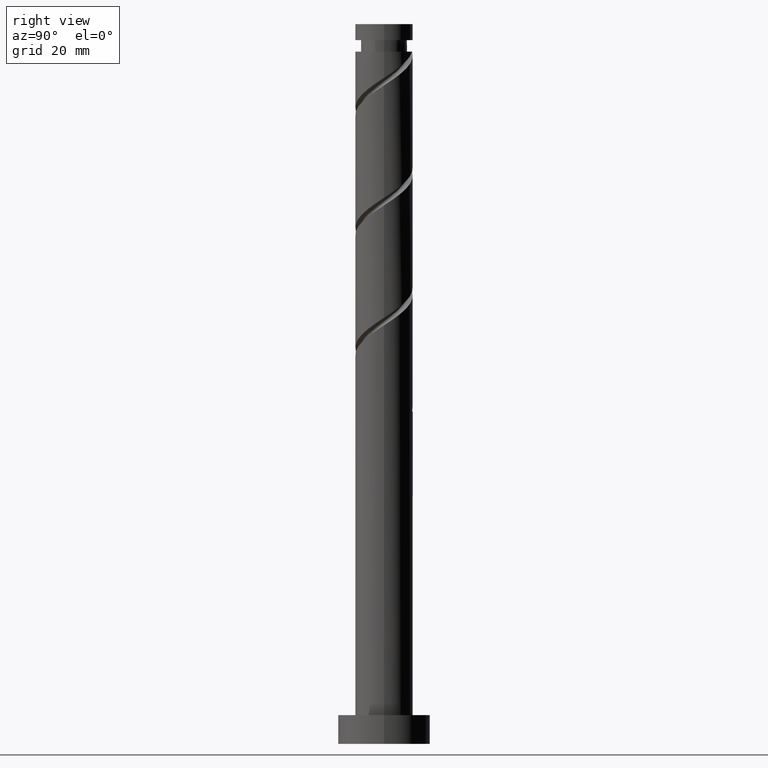
[diagram: clean part render]
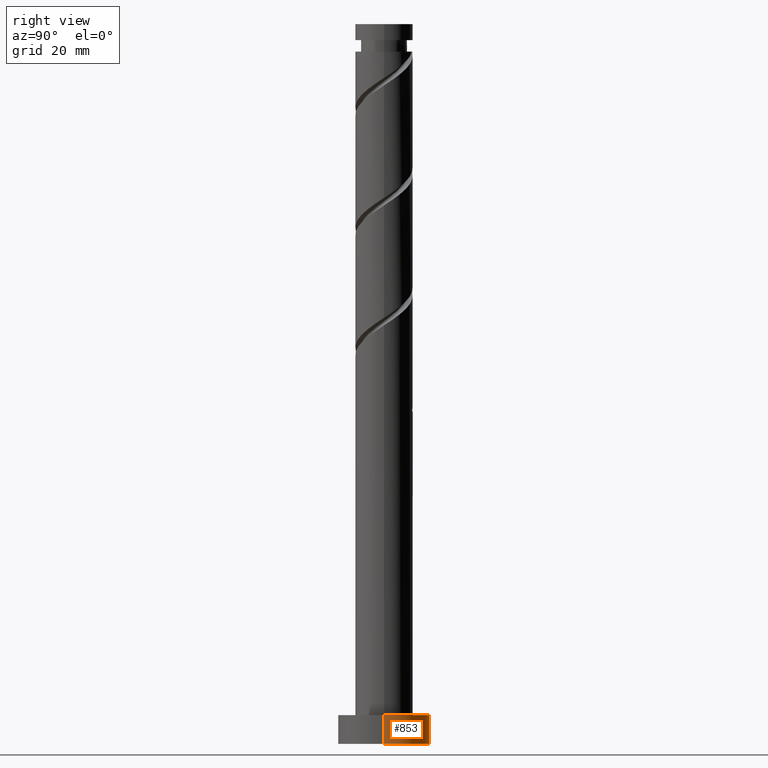
[diagram: same view with one face highlighted and labeled with its STEP entity id]
A machine part, right view. The second image highlights one B-rep face of the part: STEP entity #853.
In plain terms, the highlighted cylindrical surface (partial cylindrical patch) has radius 8 mm, axis along (-0, -0, -1).
Its self-contained STEP definition (entity closure, byte-faithful):
#48 = DIRECTION ( 'NONE',  ( 0.000000000000000000, 0.000000000000000000, 1.000000000000000000 ) ) ;
#64 = VERTEX_POINT ( 'NONE', #1482 ) ;
#125 = DIRECTION ( 'NONE',  ( -0.000000000000000000, -0.000000000000000000, -1.000000000000000000 ) ) ;
#133 = CARTESIAN_POINT ( 'NONE',  ( 8.000000000000000000, 9.797174393178825657E-16, 5.000000000000000000 ) ) ;
#195 = FACE_OUTER_BOUND ( 'NONE', #1409, .T. ) ;
#245 = DIRECTION ( 'NONE',  ( 1.000000000000000000, 0.000000000000000000, 0.000000000000000000 ) ) ;
#264 = CARTESIAN_POINT ( 'NONE',  ( -8.000000000000000000, 0.000000000000000000, 5.000000000000000000 ) ) ;
#276 = EDGE_CURVE ( 'NONE', #1496, #64, #1513, .T. ) ;
#291 = AXIS2_PLACEMENT_3D ( 'NONE', #775, #48, #1466 ) ;
#362 = VECTOR ( 'NONE', #1569, 1000.000000000000000 ) ;
#371 = DIRECTION ( 'NONE',  ( -1.000000000000000000, 0.000000000000000000, 0.000000000000000000 ) ) ;
#388 = CARTESIAN_POINT ( 'NONE',  ( 8.000000000000000000, 9.797174393178825657E-16, 5.000000000000000000 ) ) ;
#492 = CARTESIAN_POINT ( 'NONE',  ( 8.000000000000000000, 9.797174393178825657E-16, 0.000000000000000000 ) ) ;
#520 = AXIS2_PLACEMENT_3D ( 'NONE', #1175, #125, #371 ) ;
#527 = DIRECTION ( 'NONE',  ( -0.000000000000000000, -0.000000000000000000, -1.000000000000000000 ) ) ;
#617 = CARTESIAN_POINT ( 'NONE',  ( 0.000000000000000000, 0.000000000000000000, 5.000000000000000000 ) ) ;
#636 = ORIENTED_EDGE ( 'NONE', *, *, #1397, .F. ) ;
#688 = CYLINDRICAL_SURFACE ( 'NONE', #520, 8.000000000000000000 ) ;
#719 = ORIENTED_EDGE ( 'NONE', *, *, #1454, .F. ) ;
#775 = CARTESIAN_POINT ( 'NONE',  ( 0.000000000000000000, 0.000000000000000000, 0.000000000000000000 ) ) ;
#787 = ORIENTED_EDGE ( 'NONE', *, *, #276, .T. ) ;
#853 = ADVANCED_FACE ( 'NONE', ( #195 ), #688, .T. ) ;
#856 = ORIENTED_EDGE ( 'NONE', *, *, #944, .T. ) ;
#883 = CARTESIAN_POINT ( 'NONE',  ( -8.000000000000000000, 0.000000000000000000, 5.000000000000000000 ) ) ;
#922 = VERTEX_POINT ( 'NONE', #133 ) ;
#944 = EDGE_CURVE ( 'NONE', #922, #1496, #1356, .T. ) ;
#1105 = DIRECTION ( 'NONE',  ( 0.000000000000000000, 0.000000000000000000, 1.000000000000000000 ) ) ;
#1124 = LINE ( 'NONE', #883, #362 ) ;
#1175 = CARTESIAN_POINT ( 'NONE',  ( 0.000000000000000000, 0.000000000000000000, 5.000000000000000000 ) ) ;
#1265 = CIRCLE ( 'NONE', #1539, 8.000000000000000000 ) ;
#1356 = LINE ( 'NONE', #388, #1458 ) ;
#1397 = EDGE_CURVE ( 'NONE', #922, #1484, #1265, .T. ) ;
#1409 = EDGE_LOOP ( 'NONE', ( #636, #856, #787, #719 ) ) ;
#1454 = EDGE_CURVE ( 'NONE', #1484, #64, #1124, .T. ) ;
#1458 = VECTOR ( 'NONE', #527, 1000.000000000000000 ) ;
#1466 = DIRECTION ( 'NONE',  ( 1.000000000000000000, 0.000000000000000000, 0.000000000000000000 ) ) ;
#1482 = CARTESIAN_POINT ( 'NONE',  ( -8.000000000000000000, 0.000000000000000000, 0.000000000000000000 ) ) ;
#1484 = VERTEX_POINT ( 'NONE', #264 ) ;
#1496 = VERTEX_POINT ( 'NONE', #492 ) ;
#1513 = CIRCLE ( 'NONE', #291, 8.000000000000000000 ) ;
#1539 = AXIS2_PLACEMENT_3D ( 'NONE', #617, #1105, #245 ) ;
#1569 = DIRECTION ( 'NONE',  ( -0.000000000000000000, -0.000000000000000000, -1.000000000000000000 ) ) ;